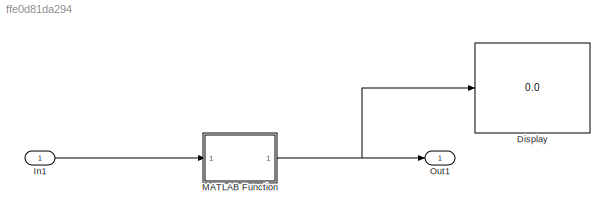
MODEL slx_ffe0d81da294
KIND model
CONFIG AbsTol = auto
CONFIG EnableMultiTasking = off
CONFIG FixedStep = auto
CONFIG MaxStep = auto
CONFIG MinStep = auto
CONFIG RelTol = 1e-3
CONFIG SampleTimeConstraint = Unconstrained
CONFIG Solver = VariableStepAuto
CONFIG SolverName = VariableStepAuto
CONFIG StartTime = 0.0
CONFIG StopTime = 10.0
BLOCK [Display] Display
  Decimation = 1
  Ports = [1]
BLOCK [Inport] In1
  IconDisplay = Port number
  OutDataTypeStr = double
  PortDimensions = [3,3]
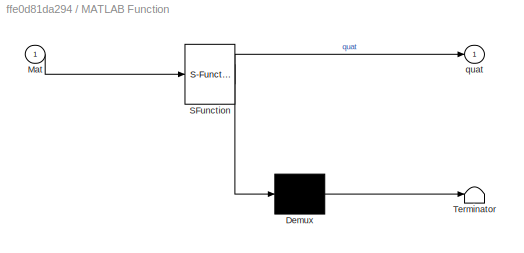
BLOCK [SubSystem] MATLAB Function
  ErrorFcn = Stateflow.Translate.translate
  PermitHierarchicalResolution = ExplicitOnly
  Ports = [1, 1]
  RequestExecContextInheritance = off
  SFBlockType = MATLAB Function
  TreatAsAtomicUnit = on
  Variant = off
BLOCK [Demux] MATLAB Function/ Demux 
  Outputs = 1
  Ports = [1, 1]
BLOCK [S-Function] MATLAB Function/ SFunction 
  EnableBusSupport = off
  FunctionName = sf_sfun
  PortCounts = [1 2]
  Ports = [1, 2]
  SFcnIsStateOwnerBlock = off
  SFunctionDeploymentMode = off
  Tag = Stateflow S-Function bio_matfunc_DCM_to_quat 2
BLOCK [Terminator] MATLAB Function/ Terminator 
BLOCK [Inport] MATLAB Function/Mat
  IconDisplay = Port number
BLOCK [Outport] MATLAB Function/quat
  IconDisplay = Port number
BLOCK [Outport] Out1
  IconDisplay = Port number
LINE In1:1 -> MATLAB Function:1
NET MATLAB Function:1 -> Display:1, Out1:1
note: NET lines group one-source signal fan-out (src -> all destinations, sorted); 1:1 wires keep LINE
CHART MATLAB Function states=1 transitions=1
  STATE_LABEL 'eML_blk_kernel()'
  STATE_LABEL "SCRIPT:\nfunction quat = DCM_to_quat(Mat)\n%#codegen\nMat = Mat';\n\nMxx = Mat(1,1);\nMyy = Mat(2,2);\nMzz = Mat(3,3);\nMxy = Mat(1,2);\nMyx = Mat(2,1);\nMxz = Mat(1,3);\nMzx = Mat(3,1);\nMyz = Mat(2,3);\nMzy = Mat(3,2);\n\na =  Mxx + Myy + Mzz;\nb =  Mxx - Myy - Mzz;\nc = -Mxx + Myy - Mzz;\nd = -Mxx - Myy + Mzz;\n\n\nif a > 0\n    e = 2*sqrt(1+a);\n    Qx = (Mzy - Myz)/e;\n    Qy = (Mxz - Mzx)/e;\n    Qz = (Myx - Mxy)/e;...<+524ch>"
